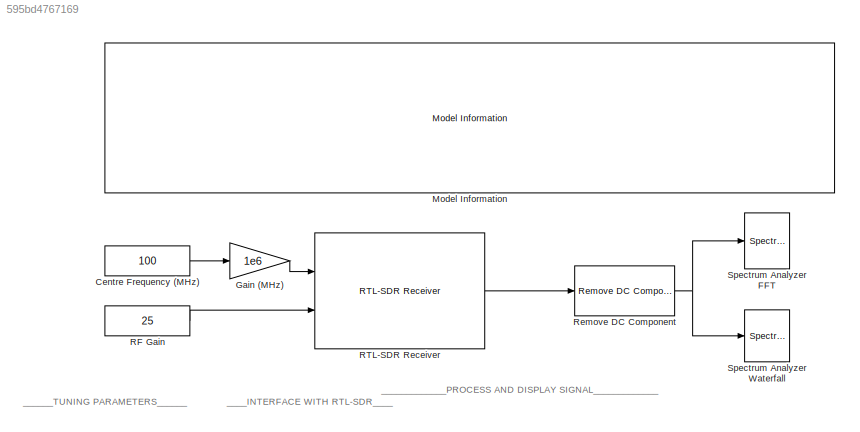
MODEL slx_595bd4767169
KIND model
CONFIG PostLoadFcn = run('control_panel.m');\n
CONFIG PreLoadFcn = %%%%%%%%%%%%%%%%%%%%%%%%%%%%%%%%%%%%%%%%%%%%%%%%%%%%%%%%%%%%%%%%%%%%%%%%%%%\n% check to see if Simulink library folder is missing from the MATLAB path %\n%%%%%%%%%%%%%%%%%%%%%%%%%%%%%%%%%%%%%%%%%%%%%%%%%%%%%%%%%%%%%%%%%%%%%%%%%%%\nif isempty(strfind(path, 'rtlsdr_book_library'))\n    \n    % create error window\n    fig_error = figure(...\n        'Name', 'Error: RTL-SDR Book Library',...\n        'Toolba...<+2697ch>
CONFIG StartFcn = try\nrun('control_panel.m');\nend\n\n
BLOCK [Constant] Centre Frequency (MHz)
  Value = 100
BLOCK [Gain] Gain (MHz)
  Gain = 1e6
  OutDataTypeStr = Inherit: Inherit via internal rule
  ParamDataTypeStr = Inherit: Inherit via internal rule
  SaturateOnIntegerOverflow = off
BLOCK [Reference] Model Information  REF=rtlsdr_book_library/Additional Tools/Model Information/Model Information  (lib defined in slx_12414fe83126, slx_a1558d2e1022)
  Ports = []
  SourceBlock = rtlsdr_book_library/Additional Tools/Model Information/Model Information
BLOCK [Constant] RF Gain
  Value = 25
BLOCK [Reference] RTL-SDR Receiver  REF=sdrrlib/RTL-SDR
Receiver
  ADCRate = 2.8e6
  ADCRateSource = Dialog
  BypassDCBlockingFilter = off
  BypassIQBalance = off
  BypassUserLogic = off
  CacheIQCalibrationTable = off
  CenterFrequency = 102.5e6
  CenterFrequencySource = Input port
  DecimationFactor = 512
  DecimationFactorSource = Dialog
  DecimatorSelect = DDC decimator
  EnableBurstMode = off
  EnableIQCalibrationTable = on
  EnableInternalClock = off
  EnableOffsetTuning = off
  EnableRTLAGC = off
  EnableTestMode = off
  EnableTunerAGC = off
  FrameLength = 4096
  FrequencyCorrection = 0
  FrequencyCorrectionSource = Dialog
  Gain = 0
  GainSource = Input port
  IFBandwidth = 40e6
  IFBandwidthSource = Dialog
  IPAddress = 0
  IQBalanceCoefficients = 64
  IntermediateFrequency = 0
  IntermediateFrequencySource = Dialog
  LatencyOutputPort = off
  LostSamplesOutputPort = off
  NumFramesInBurst = 20
  NumMLBuffers = 128
  NumUSBBuffers = 16
  OutputDataType = single
  Ports = [2, 1]
  RFFrequencyIsTunable = logical(1)
  RTLCrystalFrequency = 28800000
  SampleTime = (4096)/(2.8e6)
  SamplingMode = Quadrature
  SineAmplitude = 16000
  SineFrequency = 30000
  SkipAllHardwareResetAndInitialization = off
  SourceBlock = sdrrlib/RTL-SDR\nReceiver
  SourceLibraryInfo = This block requires <a href="http://www.mathworks.com/hardware-support/rtl-sdr.html">Communications System Toolbox Support Package for RTL-SDR Radio</a>
  SourceSelect = RF data
  SourceType = RTL-SDR Receiver
  TunerCrystalFrequency = 28800000
  ctrlUDPPort = -1
  dataUDPPort = -1
  requester = UNUSED_BY_SFCN
  sdrBlockType = SDRBlockTypeSLT.SDRRxBlock
  sdrExecutionMode = SDRExecutionModeSLT.ExecModeHW
  sobjType = sdrr.internal.SDRRTLReceiverSL
  subDeviceList = nosubdev
BLOCK [Reference] Remove DC Component  REF=rtlsdr_book_library/Additional Tools/Remove DC  (lib defined in slx_12414fe83126, slx_a1558d2e1022)
Component
  Ports = [1, 1]
  SourceBlock = rtlsdr_book_library/Additional Tools/Remove DC\nComponent
BLOCK [SpectrumAnalyzer] Spectrum Analyzer FFT
  Ports = [1]
  ScopeSpecificationString = spbscopes.SpectrumAnalyzerBlockCfg('CurrentConfiguration', extmgr.ConfigurationSet(extmgr.Configuration('Core','General UI',true,'ShowPlaybackToolbar',false,'ShowStatusbar',false,'FigureColor',[0.941176470588235 0.941176470588235 0.941176470588235]),extmgr.Configuration('Core','Source UI',true),extmgr.Configuration('Sources','WiredSimulink',true),extmgr.Configuration('Sources','Simulink',false),ex...<+6856ch>
  StartFcn = startfcn_spectrum_analyzer;
BLOCK [SpectrumAnalyzer] Spectrum Analyzer Waterfall
  Ports = [1]
  ScopeSpecificationString = spbscopes.SpectrumAnalyzerBlockCfg('CurrentConfiguration', extmgr.ConfigurationSet(extmgr.Configuration('Core','General UI',true,'ShowPlaybackToolbar',false,'ShowStatusbar',false,'FigureColor',[0.941176470588235 0.941176470588235 0.941176470588235]),extmgr.Configuration('Core','Source UI',true),extmgr.Configuration('Sources','WiredSimulink',true),extmgr.Configuration('Sources','Simulink',false),ex...<+6835ch>
  StartFcn = startfcn_spectrum_analyzer;
ANNOTATION (root): ____INTERFACE WITH RTL-SDR____
ANNOTATION (root): ______TUNING PARAMETERS______
ANNOTATION (root): _____________PROCESS AND DISPLAY SIGNAL_____________
LINE Centre Frequency (MHz):1 -> Gain (MHz):1
LINE Gain (MHz):1 -> RTL-SDR Receiver:1
LINE RF Gain:1 -> RTL-SDR Receiver:2
LINE RTL-SDR Receiver:1 -> Remove DC Component:1
NET Remove DC Component:1 -> Spectrum Analyzer FFT:1, Spectrum Analyzer Waterfall:1
note: NET lines group one-source signal fan-out (src -> all destinations, sorted); 1:1 wires keep LINE
